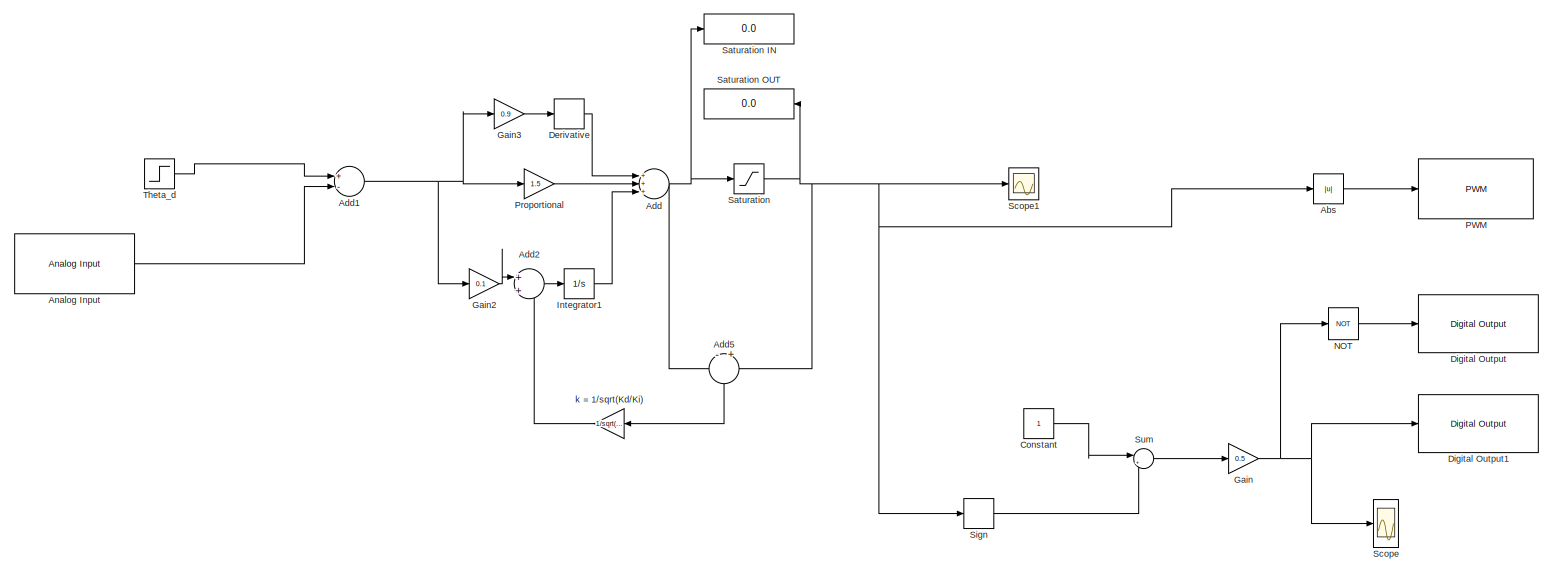
[diagram: root canvas - part 1/1, most of the canvas]
MODEL slx_531b4e02740e
KIND model
CONFIG AbsTol = auto
CONFIG EnableMultiTasking = on
CONFIG FixedStep = auto
CONFIG MaxStep = auto
CONFIG MinStep = auto
CONFIG RelTol = 1e-3
CONFIG SampleTimeConstraint = Unconstrained
CONFIG Solver = FixedStepAuto
CONFIG SolverName = FixedStepAuto
CONFIG StartTime = 0.0
CONFIG StopTime = inf
BLOCK [Abs] Abs
  SaturateOnIntegerOverflow = off
BLOCK [Sum] Add
  InputSameDT = off
  Inputs = +++
  OutDataTypeStr = Inherit: Inherit via internal rule
  Ports = [3, 1]
  SaturateOnIntegerOverflow = off
BLOCK [Sum] Add1
  InputSameDT = off
  Inputs = +-
  OutDataTypeStr = Inherit: Inherit via internal rule
  Ports = [2, 1]
  SaturateOnIntegerOverflow = off
BLOCK [Sum] Add2
  IconShape = round
  InputSameDT = off
  OutDataTypeStr = Inherit: Inherit via internal rule
  Ports = [2, 1]
  SaturateOnIntegerOverflow = off
BLOCK [Sum] Add5
  IconShape = round
  InputSameDT = off
  Inputs = -+
  OutDataTypeStr = Inherit: Inherit via internal rule
  Ports = [2, 1]
  SaturateOnIntegerOverflow = off
BLOCK [Reference] Analog Input  REF=arduinolib/Analog Input
  Ports = [0, 1]
  SourceBlock = arduinolib/Analog Input
  SourceProductBaseCode = ARDUINO
  SourceProductName = Simulink Support Package for Arduino Hardware
  SourceType = Arduino Analog Input
BLOCK [Constant] Constant
BLOCK [Derivative] Derivative
BLOCK [Reference] Digital Output  REF=arduinolib/Digital Output
  Ports = [1]
  SourceBlock = arduinolib/Digital Output
  SourceProductBaseCode = ARDUINO
  SourceProductName = Simulink Support Package for Arduino Hardware
  SourceType = Arduino Digital Output
BLOCK [Reference] Digital Output1  REF=arduinolib/Digital Output
  Ports = [1]
  SourceBlock = arduinolib/Digital Output
  SourceProductBaseCode = ARDUINO
  SourceProductName = Simulink Support Package for Arduino Hardware
  SourceType = Arduino Digital Output
BLOCK [Gain] Gain
  Gain = 0.5
  OutDataTypeStr = Inherit: Inherit via internal rule
  ParamDataTypeStr = Inherit: Inherit via internal rule
  SaturateOnIntegerOverflow = off
BLOCK [Gain] Gain2
  Gain = 0.1
  OutDataTypeStr = Inherit: Inherit via internal rule
  ParamDataTypeStr = Inherit: Inherit via internal rule
  SaturateOnIntegerOverflow = off
BLOCK [Gain] Gain3
  Gain = 0.9
  OutDataTypeStr = Inherit: Inherit via internal rule
  ParamDataTypeStr = Inherit: Inherit via internal rule
  SaturateOnIntegerOverflow = off
BLOCK [Integrator] Integrator1
  Ports = [1, 1]
BLOCK [Logic] NOT
  AllPortsSameDT = off
  IconShape = distinctive
  Operator = NOT
  OutDataTypeStr = boolean
  Ports = [1, 1]
BLOCK [Reference] PWM  REF=arduinolib/PWM
  Ports = [1]
  SourceBlock = arduinolib/PWM
  SourceProductBaseCode = ARDUINO
  SourceProductName = Simulink Support Package for Arduino Hardware
  SourceType = Arduino PWM
BLOCK [Gain] Proportional
  Gain = 1.5
  OutDataTypeStr = Inherit: Inherit via internal rule
  ParamDataTypeStr = Inherit: Inherit via internal rule
  SaturateOnIntegerOverflow = off
BLOCK [Saturate] Saturation
  InputPortMap = u0
  LowerLimit = -130
  Ports = [1, 1]
  UpperLimit = 130
BLOCK [Display] Saturation IN
  Decimation = 1
  Ports = [1]
BLOCK [Display] Saturation OUT
  Decimation = 1
  Ports = [1]
BLOCK [Scope] Scope
  Floating = off
  NumInputPorts = 1
  Ports = [1]
  ScopeSpecificationString = Simulink.scopes.TimeScopeBlockCfg('CurrentConfiguration', extmgr.ConfigurationSet(extmgr.Configuration('Core','General UI',true),extmgr.Configuration('Core','Source UI',true),extmgr.Configuration('Sources','WiredSimulink',true),extmgr.Configuration('Visuals','Time Domain',true,'SerializedDisplays',{struct('MinYLimReal','-1.25','MaxYLimReal','1.25','YLabelReal','','MinYLimMag','0.00000','MaxYLimMag...<+1418ch>
BLOCK [Scope] Scope1
  Floating = off
  NumInputPorts = 1
  Ports = [1]
  ScopeSpecificationString = Simulink.scopes.TimeScopeBlockCfg('CurrentConfiguration', extmgr.ConfigurationSet(extmgr.Configuration('Core','General UI',true),extmgr.Configuration('Core','Source UI',true),extmgr.Configuration('Sources','WiredSimulink',true,'DataLoggingVariableName','ScopeData1'),extmgr.Configuration('Visuals','Time Domain',true,'SerializedDisplays',{struct('MinYLimReal','-24.71098','MaxYLimReal','222.39884','Y...<+1381ch>
BLOCK [Signum] Sign
BLOCK [Sum] Sum
  IconShape = round
  InputSameDT = off
  Inputs = |++
  OutDataTypeStr = Inherit: Inherit via internal rule
  Ports = [2, 1]
  SaturateOnIntegerOverflow = off
BLOCK [Step] Theta_d
  After = 95
  SampleTime = 0
BLOCK [Gain] k = 1//sqrt(Kd//Ki)
  Gain = 1/sqrt(0.8/0.1)
  OutDataTypeStr = Inherit: Inherit via internal rule
  ParamDataTypeStr = Inherit: Inherit via internal rule
  SaturateOnIntegerOverflow = off
LINE Abs:1 -> PWM:1
NET Add1:1 -> Gain2:1, Gain3:1, Proportional:1
LINE Add2:1 -> Integrator1:1
LINE Add5:1 -> k = 1//sqrt(Kd//Ki):1
NET Add:1 -> Add5:1, Saturation IN:1, Saturation:1
LINE Analog Input:1 -> Add1:2
LINE Constant:1 -> Sum:1
LINE Derivative:1 -> Add:1
LINE Gain2:1 -> Add2:1
LINE Gain3:1 -> Derivative:1
NET Gain:1 -> Digital Output1:1, NOT:1, Scope:1
LINE Integrator1:1 -> Add:3
LINE NOT:1 -> Digital Output:1
LINE Proportional:1 -> Add:2
NET Saturation:1 -> Abs:1, Add5:2, Saturation OUT:1, Scope1:1, Sign:1
LINE Sign:1 -> Sum:2
LINE Sum:1 -> Gain:1
LINE Theta_d:1 -> Add1:1
LINE k = 1//sqrt(Kd//Ki):1 -> Add2:2
note: NET lines group one-source signal fan-out (src -> all destinations, sorted); 1:1 wires keep LINE
